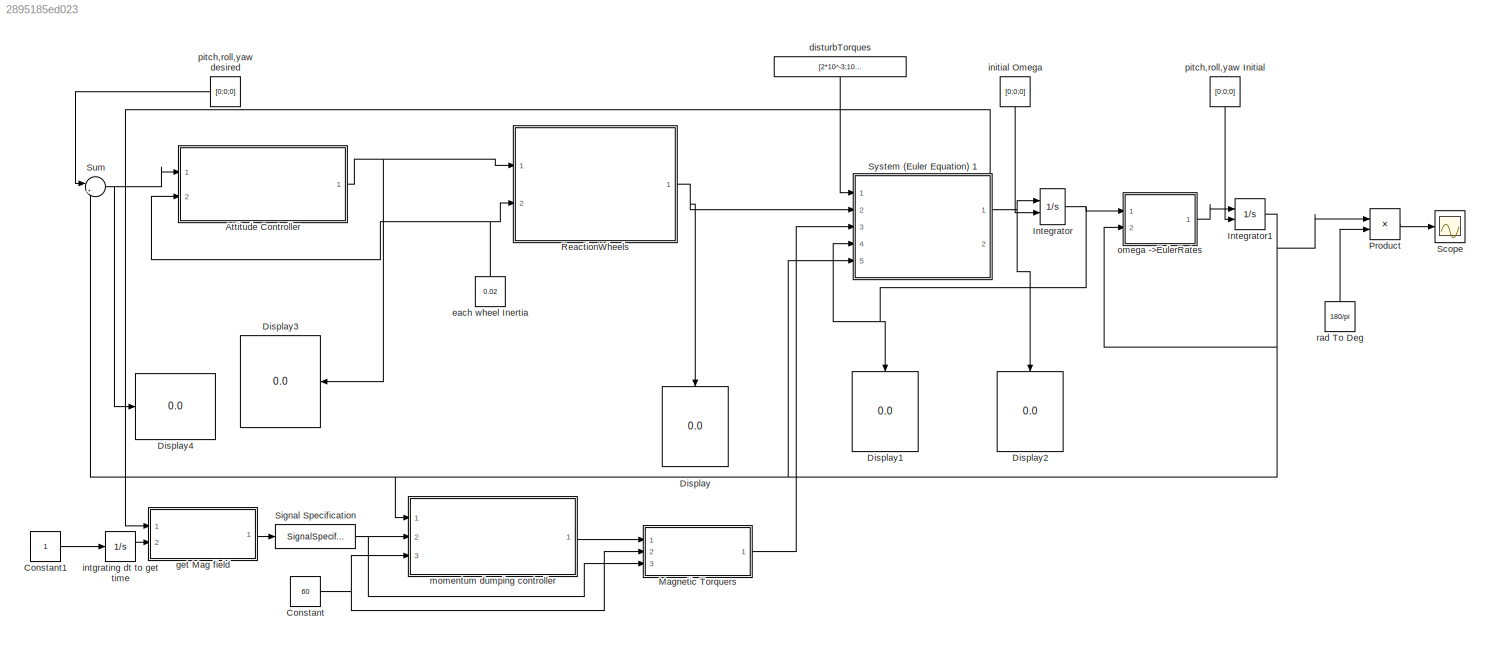
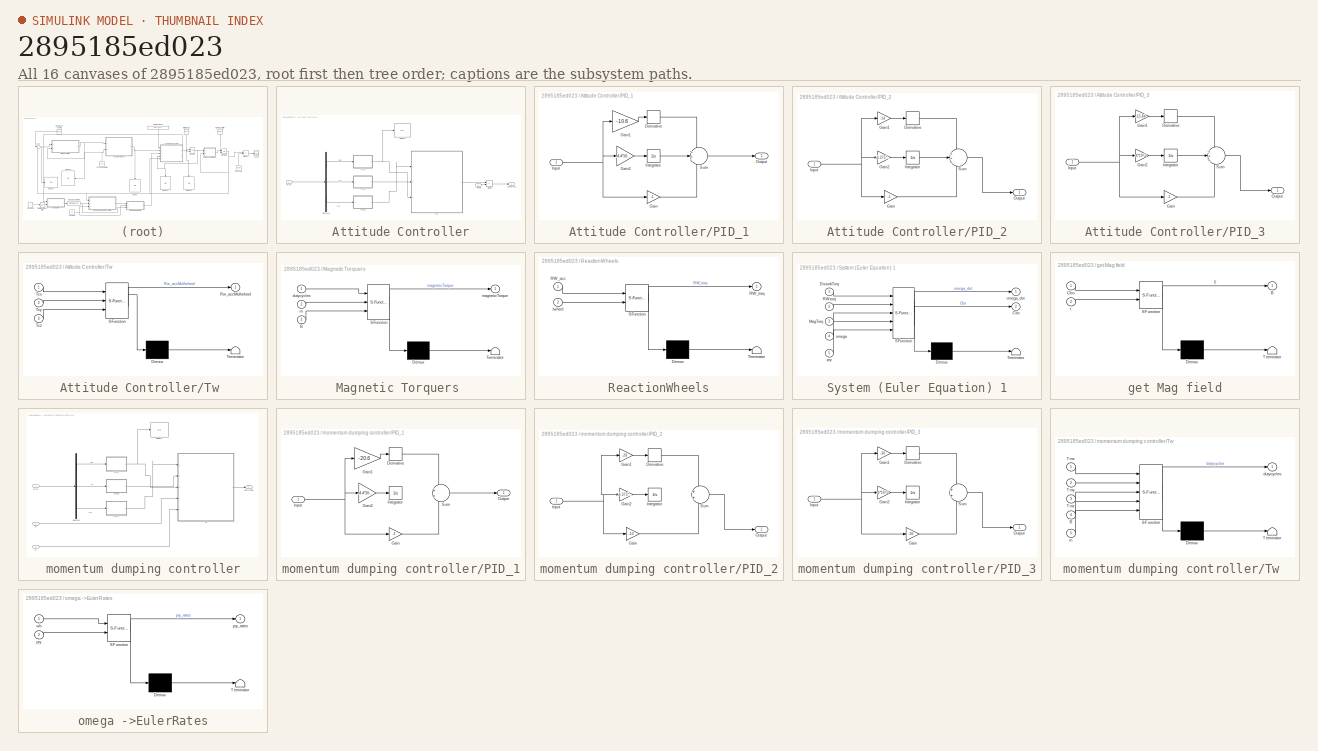
[diagram: thumbnail index - all 16 canvases of the model, root first then tree order]
MODEL slx_2895185ed023
KIND model
CONFIG AbsTol = auto
CONFIG EnableMultiTasking = off
CONFIG FixedStep = auto
CONFIG MaxStep = 0.01
CONFIG MinStep = auto
CONFIG RelTol = 1e-6
CONFIG SampleTimeConstraint = Unconstrained
CONFIG Solver = VariableStepAuto
CONFIG SolverName = VariableStepAuto
CONFIG StartTime = 0.0
CONFIG StopTime = 10000
BLOCK [SubSystem] Attitude Controller
  Ports = [2, 1]
  RequestExecContextInheritance = off
  Variant = off
BLOCK [Demux] Attitude Controller/Demux1
  DisplayOption = bar
  Outputs = 3
  Ports = [1, 3]
BLOCK [Display] Attitude Controller/Display4
  Decimation = 1
  Ports = [1]
BLOCK [Product] Attitude Controller/Divide
  InputSameDT = off
  Inputs = */
  OutDataTypeStr = Inherit: Inherit via internal rule
  Ports = [2, 1]
  RndMeth = Floor
  SaturateOnIntegerOverflow = off
BLOCK [Inport] Attitude Controller/I  wheel
  IconDisplay = Port number
  Port = 2
BLOCK [SubSystem] Attitude Controller/PID_1
  Ports = [1, 1]
  RequestExecContextInheritance = off
  Variant = off
BLOCK [Derivative] Attitude Controller/PID_1/Derivative
  CoefficientInTFapproximation = 0
BLOCK [Gain] Attitude Controller/PID_1/Gain
  Gain = -1
  OutDataTypeStr = Inherit: Inherit via internal rule
  ParamDataTypeStr = Inherit: Inherit via internal rule
  SaturateOnIntegerOverflow = off
BLOCK [Gain] Attitude Controller/PID_1/Gain1
  Gain = -10.6
  OutDataTypeStr = Inherit: Inherit via internal rule
  ParamDataTypeStr = Inherit: Inherit via internal rule
  SaturateOnIntegerOverflow = off
BLOCK [Gain] Attitude Controller/PID_1/Gain2
  Gain = -4.4*10^-3
  OutDataTypeStr = Inherit: Inherit via internal rule
  ParamDataTypeStr = Inherit: Inherit via internal rule
  SaturateOnIntegerOverflow = off
BLOCK [Inport] Attitude Controller/PID_1/Input
  IconDisplay = Port number
BLOCK [Integrator] Attitude Controller/PID_1/Integrator
  Ports = [1, 1]
BLOCK [Outport] Attitude Controller/PID_1/Output
  IconDisplay = Port number
BLOCK [Sum] Attitude Controller/PID_1/Sum
  IconShape = round
  InputSameDT = off
  Inputs = +++
  OutDataTypeStr = Inherit: Inherit via internal rule
  Ports = [3, 1]
  SaturateOnIntegerOverflow = off
BLOCK [SubSystem] Attitude Controller/PID_2
  Ports = [1, 1]
  RequestExecContextInheritance = off
  Variant = off
BLOCK [Derivative] Attitude Controller/PID_2/Derivative
  CoefficientInTFapproximation = 0
BLOCK [Gain] Attitude Controller/PID_2/Gain
  Gain = -1
  OutDataTypeStr = Inherit: Inherit via internal rule
  ParamDataTypeStr = Inherit: Inherit via internal rule
  SaturateOnIntegerOverflow = off
BLOCK [Gain] Attitude Controller/PID_2/Gain1
  Gain = -14
  OutDataTypeStr = Inherit: Inherit via internal rule
  ParamDataTypeStr = Inherit: Inherit via internal rule
  SaturateOnIntegerOverflow = off
BLOCK [Gain] Attitude Controller/PID_2/Gain2
  Gain = -4.375*10^-3
  OutDataTypeStr = Inherit: Inherit via internal rule
  ParamDataTypeStr = Inherit: Inherit via internal rule
  SaturateOnIntegerOverflow = off
BLOCK [Inport] Attitude Controller/PID_2/Input
  IconDisplay = Port number
BLOCK [Integrator] Attitude Controller/PID_2/Integrator
  Ports = [1, 1]
BLOCK [Outport] Attitude Controller/PID_2/Output
  IconDisplay = Port number
BLOCK [Sum] Attitude Controller/PID_2/Sum
  IconShape = round
  InputSameDT = off
  Inputs = +++
  OutDataTypeStr = Inherit: Inherit via internal rule
  Ports = [3, 1]
  SaturateOnIntegerOverflow = off
BLOCK [SubSystem] Attitude Controller/PID_3
  Ports = [1, 1]
  RequestExecContextInheritance = off
  Variant = off
BLOCK [Derivative] Attitude Controller/PID_3/Derivative
  CoefficientInTFapproximation = 0
BLOCK [Gain] Attitude Controller/PID_3/Gain
  Gain = -1
  OutDataTypeStr = Inherit: Inherit via internal rule
  ParamDataTypeStr = Inherit: Inherit via internal rule
  SaturateOnIntegerOverflow = off
BLOCK [Gain] Attitude Controller/PID_3/Gain1
  Gain = -15.84
  OutDataTypeStr = Inherit: Inherit via internal rule
  ParamDataTypeStr = Inherit: Inherit via internal rule
  SaturateOnIntegerOverflow = off
BLOCK [Gain] Attitude Controller/PID_3/Gain2
  Gain = -4*10^-3
  OutDataTypeStr = Inherit: Inherit via internal rule
  ParamDataTypeStr = Inherit: Inherit via internal rule
  SaturateOnIntegerOverflow = off
BLOCK [Inport] Attitude Controller/PID_3/Input
  IconDisplay = Port number
BLOCK [Integrator] Attitude Controller/PID_3/Integrator
  Ports = [1, 1]
BLOCK [Outport] Attitude Controller/PID_3/Output
  IconDisplay = Port number
BLOCK [Sum] Attitude Controller/PID_3/Sum
  IconShape = round
  InputSameDT = off
  Inputs = +++
  OutDataTypeStr = Inherit: Inherit via internal rule
  Ports = [3, 1]
  SaturateOnIntegerOverflow = off
BLOCK [SubSystem] Attitude Controller/Tw 
  ErrorFcn = Stateflow.Translate.translate
  PermitHierarchicalResolution = ExplicitOnly
  Ports = [3, 1]
  RequestExecContextInheritance = off
  SFBlockType = MATLAB Function
  TreatAsAtomicUnit = on
  Variant = off
BLOCK [Demux] Attitude Controller/Tw / Demux 
  Outputs = 1
  Ports = [1, 1]
BLOCK [S-Function] Attitude Controller/Tw / SFunction 
  EnableBusSupport = on
  FunctionName = sf_sfun
  PortCounts = [3 2]
  Ports = [3, 2]
  SFcnIsStateOwnerBlock = off
  SFunctionDeploymentMode = off
  Tag = Stateflow S-Function mainModel_matlab2013b_ 1
BLOCK [Terminator] Attitude Controller/Tw / Terminator 
BLOCK [Outport] Attitude Controller/Tw /Rw_accMulIwheel
  IconDisplay = Port number
BLOCK [Inport] Attitude Controller/Tw /Tcx
  IconDisplay = Port number
BLOCK [Inport] Attitude Controller/Tw /Tcy
  IconDisplay = Port number
  Port = 2
BLOCK [Inport] Attitude Controller/Tw /Tcz
  IconDisplay = Port number
  Port = 3
BLOCK [Outport] Attitude Controller/Wheel acc
  IconDisplay = Port number
BLOCK [Inport] Attitude Controller/error
  IconDisplay = Port number
BLOCK [Constant] Constant
  Value = 60
BLOCK [Constant] Constant1
BLOCK [Display] Display
  Decimation = 1
  Ports = [1]
BLOCK [Display] Display1
  Decimation = 1
  Ports = [1]
BLOCK [Display] Display2
  Decimation = 1
  Ports = [1]
BLOCK [Display] Display3
  Decimation = 1
  Ports = [1]
BLOCK [Display] Display4
  Decimation = 1
  Ports = [1]
BLOCK [Integrator] Integrator
  InitialConditionSource = external
  Ports = [2, 1]
BLOCK [Integrator] Integrator1
  InitialConditionSource = external
  Ports = [2, 1]
BLOCK [SubSystem] Magnetic Torquers 
  ErrorFcn = Stateflow.Translate.translate
  PermitHierarchicalResolution = ExplicitOnly
  Ports = [3, 1]
  RequestExecContextInheritance = off
  SFBlockType = MATLAB Function
  TreatAsAtomicUnit = on
  Variant = off
BLOCK [Demux] Magnetic Torquers / Demux 
  Outputs = 1
  Ports = [1, 1]
BLOCK [S-Function] Magnetic Torquers / SFunction 
  EnableBusSupport = on
  FunctionName = sf_sfun
  PortCounts = [3 2]
  Ports = [3, 2]
  SFcnIsStateOwnerBlock = off
  SFunctionDeploymentMode = off
  Tag = Stateflow S-Function mainModel_matlab2013b_ 6
BLOCK [Terminator] Magnetic Torquers / Terminator 
BLOCK [Inport] Magnetic Torquers /B
  IconDisplay = Port number
  Port = 3
BLOCK [Inport] Magnetic Torquers /dutycycles
  IconDisplay = Port number
BLOCK [Inport] Magnetic Torquers /m
  IconDisplay = Port number
  Port = 2
BLOCK [Outport] Magnetic Torquers /magneticTorque
  IconDisplay = Port number
BLOCK [Product] Product
  InputSameDT = off
  OutDataTypeStr = Inherit: Inherit via internal rule
  Ports = [2, 1]
  RndMeth = Floor
  SaturateOnIntegerOverflow = off
BLOCK [SubSystem] ReactionWheels
  ErrorFcn = Stateflow.Translate.translate
  PermitHierarchicalResolution = ExplicitOnly
  Ports = [2, 1]
  RequestExecContextInheritance = off
  SFBlockType = MATLAB Function
  TreatAsAtomicUnit = on
  Variant = off
BLOCK [Demux] ReactionWheels/ Demux 
  Outputs = 1
  Ports = [1, 1]
BLOCK [S-Function] ReactionWheels/ SFunction 
  EnableBusSupport = on
  FunctionName = sf_sfun
  PortCounts = [2 2]
  Ports = [2, 2]
  SFcnIsStateOwnerBlock = off
  SFunctionDeploymentMode = off
  Tag = Stateflow S-Function mainModel_matlab2013b_ 8
BLOCK [Terminator] ReactionWheels/ Terminator 
BLOCK [Inport] ReactionWheels/Iwheel
  IconDisplay = Port number
  Port = 2
BLOCK [Inport] ReactionWheels/RW_acc
  IconDisplay = Port number
BLOCK [Outport] ReactionWheels/RW_torq
  IconDisplay = Port number
BLOCK [Scope] Scope
  NumInputPorts = 1
  Ports = [1]
  ScopeSpecificationString = Simulink.scopes.TimeScopeBlockCfg('CurrentConfiguration', extmgr.ConfigurationSet(extmgr.Configuration('Core','General UI',true,'FigureColor',[0.156862745098039 0.156862745098039 0.156862745098039]),extmgr.Configuration('Core','Source UI',true),extmgr.Configuration('Sources','WiredSimulink',true,'DataLoggingSaveFormat','StructureWithTime','DataLoggingDecimation','1','DataLoggingDecimateData',true)...<+2762ch>
BLOCK [SignalSpecification] Signal Specification
  Dimensions = 3
  OutDataTypeStr = double
BLOCK [Sum] Sum
  IconShape = round
  InputSameDT = off
  Inputs = |+-
  OutDataTypeStr = Inherit: Inherit via internal rule
  Ports = [2, 1]
  SaturateOnIntegerOverflow = off
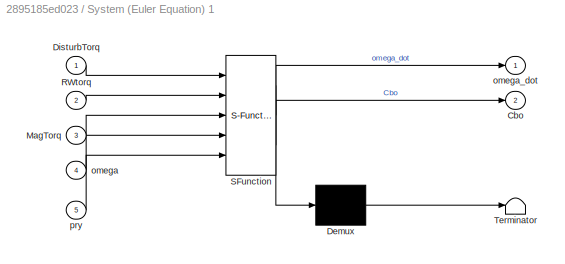
BLOCK [SubSystem] System (Euler Equation) 1
  ErrorFcn = Stateflow.Translate.translate
  PermitHierarchicalResolution = ExplicitOnly
  Ports = [5, 2]
  RequestExecContextInheritance = off
  SFBlockType = MATLAB Function
  TreatAsAtomicUnit = on
  Variant = off
BLOCK [Demux] System (Euler Equation) 1/ Demux 
  Outputs = 1
  Ports = [1, 1]
BLOCK [S-Function] System (Euler Equation) 1/ SFunction 
  EnableBusSupport = on
  FunctionName = sf_sfun
  PortCounts = [5 3]
  Ports = [5, 3]
  SFcnIsStateOwnerBlock = off
  SFunctionDeploymentMode = off
  Tag = Stateflow S-Function mainModel_matlab2013b_ 3
BLOCK [Terminator] System (Euler Equation) 1/ Terminator 
BLOCK [Outport] System (Euler Equation) 1/Cbo
  IconDisplay = Port number
  Port = 2
BLOCK [Inport] System (Euler Equation) 1/DisturbTorq
  IconDisplay = Port number
BLOCK [Inport] System (Euler Equation) 1/MagTorq
  IconDisplay = Port number
  Port = 3
BLOCK [Inport] System (Euler Equation) 1/RWtorq
  IconDisplay = Port number
  Port = 2
BLOCK [Inport] System (Euler Equation) 1/omega
  IconDisplay = Port number
  Port = 4
BLOCK [Outport] System (Euler Equation) 1/omega_dot
  IconDisplay = Port number
BLOCK [Inport] System (Euler Equation) 1/pry
  IconDisplay = Port number
  Port = 5
BLOCK [Constant] disturbTorques
  Value = [2*10^-3;10^-4;2*10^-3]
BLOCK [Constant] each wheel Inertia
  Value = 0.02
BLOCK [SubSystem] get Mag field
  ErrorFcn = Stateflow.Translate.translate
  PermitHierarchicalResolution = ExplicitOnly
  Ports = [2, 1]
  RequestExecContextInheritance = off
  SFBlockType = MATLAB Function
  TreatAsAtomicUnit = on
  Variant = off
BLOCK [Demux] get Mag field/ Demux 
  Outputs = 1
  Ports = [1, 1]
BLOCK [S-Function] get Mag field/ SFunction 
  EnableBusSupport = on
  FunctionName = sf_sfun
  PortCounts = [2 2]
  Ports = [2, 2]
  SFcnIsStateOwnerBlock = off
  SFunctionDeploymentMode = off
  Tag = Stateflow S-Function mainModel_matlab2013b_ 4
BLOCK [Terminator] get Mag field/ Terminator 
BLOCK [Outport] get Mag field/B
  IconDisplay = Port number
BLOCK [Inport] get Mag field/Cbo
  IconDisplay = Port number
BLOCK [Inport] get Mag field/t
  IconDisplay = Port number
  Port = 2
BLOCK [Constant] initial Omega
  Value = [0;0;0]
BLOCK [Integrator] intgrating dt to get time
  Ports = [1, 1]
BLOCK [SubSystem] momentum dumping controller
  Ports = [3, 1]
  RequestExecContextInheritance = off
  Variant = off
BLOCK [Inport] momentum dumping controller/B
  IconDisplay = Port number
  Port = 2
BLOCK [Demux] momentum dumping controller/Demux1
  DisplayOption = bar
  Outputs = 3
  Ports = [1, 3]
BLOCK [Display] momentum dumping controller/Display4
  Decimation = 1
  Ports = [1]
BLOCK [Outport] momentum dumping controller/DutyCycles
  IconDisplay = Port number
BLOCK [SubSystem] momentum dumping controller/PID_1
  Ports = [1, 1]
  RequestExecContextInheritance = off
  Variant = off
BLOCK [Derivative] momentum dumping controller/PID_1/Derivative
  CoefficientInTFapproximation = 0
BLOCK [Gain] momentum dumping controller/PID_1/Gain
  Gain = -2
  OutDataTypeStr = Inherit: Inherit via internal rule
  ParamDataTypeStr = Inherit: Inherit via internal rule
  SaturateOnIntegerOverflow = off
BLOCK [Gain] momentum dumping controller/PID_1/Gain1
  Gain = -20.6
  OutDataTypeStr = Inherit: Inherit via internal rule
  ParamDataTypeStr = Inherit: Inherit via internal rule
  SaturateOnIntegerOverflow = off
BLOCK [Gain] momentum dumping controller/PID_1/Gain2
  Commented = through
  Gain = -4.4*10^-3
  OutDataTypeStr = Inherit: Inherit via internal rule
  ParamDataTypeStr = Inherit: Inherit via internal rule
  SaturateOnIntegerOverflow = off
BLOCK [Inport] momentum dumping controller/PID_1/Input
  IconDisplay = Port number
BLOCK [Integrator] momentum dumping controller/PID_1/Integrator
  Commented = through
  Ports = [1, 1]
BLOCK [Outport] momentum dumping controller/PID_1/Output
  IconDisplay = Port number
BLOCK [Sum] momentum dumping controller/PID_1/Sum
  IconShape = round
  InputSameDT = off
  OutDataTypeStr = Inherit: Inherit via internal rule
  Ports = [2, 1]
  SaturateOnIntegerOverflow = off
BLOCK [SubSystem] momentum dumping controller/PID_2
  Ports = [1, 1]
  RequestExecContextInheritance = off
  Variant = off
BLOCK [Derivative] momentum dumping controller/PID_2/Derivative
  CoefficientInTFapproximation = 0
BLOCK [Gain] momentum dumping controller/PID_2/Gain
  Gain = -10
  OutDataTypeStr = Inherit: Inherit via internal rule
  ParamDataTypeStr = Inherit: Inherit via internal rule
  SaturateOnIntegerOverflow = off
BLOCK [Gain] momentum dumping controller/PID_2/Gain1
  Gain = -28
  OutDataTypeStr = Inherit: Inherit via internal rule
  ParamDataTypeStr = Inherit: Inherit via internal rule
  SaturateOnIntegerOverflow = off
BLOCK [Gain] momentum dumping controller/PID_2/Gain2
  Commented = on
  Gain = -4.375*10^-3
  OutDataTypeStr = Inherit: Inherit via internal rule
  ParamDataTypeStr = Inherit: Inherit via internal rule
  SaturateOnIntegerOverflow = off
BLOCK [Inport] momentum dumping controller/PID_2/Input
  IconDisplay = Port number
BLOCK [Integrator] momentum dumping controller/PID_2/Integrator
  Commented = on
  Ports = [1, 1]
BLOCK [Outport] momentum dumping controller/PID_2/Output
  IconDisplay = Port number
BLOCK [Sum] momentum dumping controller/PID_2/Sum
  IconShape = round
  InputSameDT = off
  OutDataTypeStr = Inherit: Inherit via internal rule
  Ports = [2, 1]
  SaturateOnIntegerOverflow = off
BLOCK [SubSystem] momentum dumping controller/PID_3
  Ports = [1, 1]
  RequestExecContextInheritance = off
  Variant = off
BLOCK [Derivative] momentum dumping controller/PID_3/Derivative
  CoefficientInTFapproximation = 0
BLOCK [Gain] momentum dumping controller/PID_3/Gain
  Gain = -30
  OutDataTypeStr = Inherit: Inherit via internal rule
  ParamDataTypeStr = Inherit: Inherit via internal rule
  SaturateOnIntegerOverflow = off
BLOCK [Gain] momentum dumping controller/PID_3/Gain1
  Gain = -30
  OutDataTypeStr = Inherit: Inherit via internal rule
  ParamDataTypeStr = Inherit: Inherit via internal rule
  SaturateOnIntegerOverflow = off
BLOCK [Gain] momentum dumping controller/PID_3/Gain2
  Commented = on
  Gain = -4*10^-3
  OutDataTypeStr = Inherit: Inherit via internal rule
  ParamDataTypeStr = Inherit: Inherit via internal rule
  SaturateOnIntegerOverflow = off
BLOCK [Inport] momentum dumping controller/PID_3/Input
  IconDisplay = Port number
BLOCK [Integrator] momentum dumping controller/PID_3/Integrator
  Commented = on
  Ports = [1, 1]
BLOCK [Outport] momentum dumping controller/PID_3/Output
  IconDisplay = Port number
BLOCK [Sum] momentum dumping controller/PID_3/Sum
  IconShape = round
  InputSameDT = off
  OutDataTypeStr = Inherit: Inherit via internal rule
  Ports = [2, 1]
  SaturateOnIntegerOverflow = off
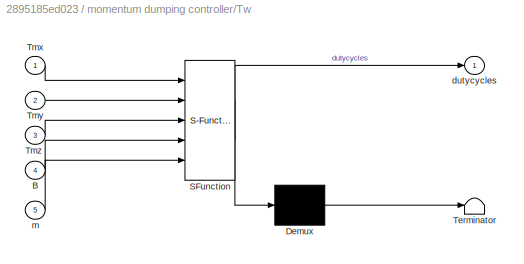
BLOCK [SubSystem] momentum dumping controller/Tw 
  ErrorFcn = Stateflow.Translate.translate
  PermitHierarchicalResolution = ExplicitOnly
  Ports = [5, 1]
  RequestExecContextInheritance = off
  SFBlockType = MATLAB Function
  TreatAsAtomicUnit = on
  Variant = off
BLOCK [Demux] momentum dumping controller/Tw / Demux 
  Outputs = 1
  Ports = [1, 1]
BLOCK [S-Function] momentum dumping controller/Tw / SFunction 
  EnableBusSupport = on
  FunctionName = sf_sfun
  PortCounts = [5 2]
  Ports = [5, 2]
  SFcnIsStateOwnerBlock = off
  SFunctionDeploymentMode = off
  Tag = Stateflow S-Function mainModel_matlab2013b_ 2
BLOCK [Terminator] momentum dumping controller/Tw / Terminator 
BLOCK [Inport] momentum dumping controller/Tw /B
  IconDisplay = Port number
  Port = 4
BLOCK [Inport] momentum dumping controller/Tw /Tmx
  IconDisplay = Port number
BLOCK [Inport] momentum dumping controller/Tw /Tmy
  IconDisplay = Port number
  Port = 2
BLOCK [Inport] momentum dumping controller/Tw /Tmz
  IconDisplay = Port number
  Port = 3
BLOCK [Outport] momentum dumping controller/Tw /dutycycles
  IconDisplay = Port number
BLOCK [Inport] momentum dumping controller/Tw /m
  IconDisplay = Port number
  Port = 5
BLOCK [Inport] momentum dumping controller/error
  IconDisplay = Port number
BLOCK [Inport] momentum dumping controller/m
  IconDisplay = Port number
  Port = 3
BLOCK [SubSystem] omega ->EulerRates
  ErrorFcn = Stateflow.Translate.translate
  PermitHierarchicalResolution = ExplicitOnly
  Ports = [2, 1]
  RequestExecContextInheritance = off
  SFBlockType = MATLAB Function
  TreatAsAtomicUnit = on
  Variant = off
BLOCK [Demux] omega ->EulerRates/ Demux 
  Outputs = 1
  Ports = [1, 1]
BLOCK [S-Function] omega ->EulerRates/ SFunction 
  EnableBusSupport = on
  FunctionName = sf_sfun
  PortCounts = [2 2]
  Ports = [2, 2]
  SFcnIsStateOwnerBlock = off
  SFunctionDeploymentMode = off
  Tag = Stateflow S-Function mainModel_matlab2013b_ 7
BLOCK [Terminator] omega ->EulerRates/ Terminator 
BLOCK [Inport] omega ->EulerRates/pry
  IconDisplay = Port number
  Port = 2
BLOCK [Outport] omega ->EulerRates/pry_rates
  IconDisplay = Port number
BLOCK [Inport] omega ->EulerRates/wb
  IconDisplay = Port number
BLOCK [Constant] pitch,roll,yaw Initial
  Value = [0;0;0]
BLOCK [Constant] pitch,roll,yaw desired
  Value = [0;0;0]
BLOCK [Constant] rad To Deg
  Value = 180/pi
ANNOTATION Attitude Controller: yaw
ANNOTATION momentum dumping controller: yaw
LINE Attitude Controller/Demux1:1 -> Attitude Controller/PID_1:1
LINE Attitude Controller/Demux1:2 -> Attitude Controller/PID_2:1
LINE Attitude Controller/Demux1:3 -> Attitude Controller/PID_3:1
LINE Attitude Controller/Divide:1 -> Attitude Controller/Wheel acc:1
LINE Attitude Controller/I  wheel:1 -> Attitude Controller/Divide:2
LINE Attitude Controller/PID_1/Derivative:1 -> Attitude Controller/PID_1/Sum:1
LINE Attitude Controller/PID_1/Gain1:1 -> Attitude Controller/PID_1/Derivative:1
LINE Attitude Controller/PID_1/Gain2:1 -> Attitude Controller/PID_1/Integrator:1
LINE Attitude Controller/PID_1/Gain:1 -> Attitude Controller/PID_1/Sum:3
NET Attitude Controller/PID_1/Input:1 -> Attitude Controller/PID_1/Gain1:1, Attitude Controller/PID_1/Gain2:1, Attitude Controller/PID_1/Gain:1
LINE Attitude Controller/PID_1/Integrator:1 -> Attitude Controller/PID_1/Sum:2
LINE Attitude Controller/PID_1/Sum:1 -> Attitude Controller/PID_1/Output:1
NET Attitude Controller/PID_1:1 -> Attitude Controller/Display4:1, Attitude Controller/Tw :3
LINE Attitude Controller/PID_2/Derivative:1 -> Attitude Controller/PID_2/Sum:1
LINE Attitude Controller/PID_2/Gain1:1 -> Attitude Controller/PID_2/Derivative:1
LINE Attitude Controller/PID_2/Gain2:1 -> Attitude Controller/PID_2/Integrator:1
LINE Attitude Controller/PID_2/Gain:1 -> Attitude Controller/PID_2/Sum:3
NET Attitude Controller/PID_2/Input:1 -> Attitude Controller/PID_2/Gain1:1, Attitude Controller/PID_2/Gain2:1, Attitude Controller/PID_2/Gain:1
LINE Attitude Controller/PID_2/Integrator:1 -> Attitude Controller/PID_2/Sum:2
LINE Attitude Controller/PID_2/Sum:1 -> Attitude Controller/PID_2/Output:1
LINE Attitude Controller/PID_2:1 -> Attitude Controller/Tw :2
LINE Attitude Controller/PID_3/Derivative:1 -> Attitude Controller/PID_3/Sum:1
LINE Attitude Controller/PID_3/Gain1:1 -> Attitude Controller/PID_3/Derivative:1
LINE Attitude Controller/PID_3/Gain2:1 -> Attitude Controller/PID_3/Integrator:1
LINE Attitude Controller/PID_3/Gain:1 -> Attitude Controller/PID_3/Sum:3
NET Attitude Controller/PID_3/Input:1 -> Attitude Controller/PID_3/Gain1:1, Attitude Controller/PID_3/Gain2:1, Attitude Controller/PID_3/Gain:1
LINE Attitude Controller/PID_3/Integrator:1 -> Attitude Controller/PID_3/Sum:2
LINE Attitude Controller/PID_3/Sum:1 -> Attitude Controller/PID_3/Output:1
LINE Attitude Controller/PID_3:1 -> Attitude Controller/Tw :1
LINE Attitude Controller/Tw :1 -> Attitude Controller/Divide:1
LINE Attitude Controller/error:1 -> Attitude Controller/Demux1:1
NET Attitude Controller:1 -> Display3:1, ReactionWheels:1
LINE Constant1:1 -> intgrating dt to get time:1
NET Constant:1 -> Magnetic Torquers :2, momentum dumping controller:3
NET Integrator1:1 -> Product:1, Sum:2, System (Euler Equation) 1:5, momentum dumping controller:1, omega ->EulerRates:2
NET Integrator:1 -> Display1:1, System (Euler Equation) 1:4, omega ->EulerRates:1
LINE Magnetic Torquers :1 -> System (Euler Equation) 1:3
LINE Product:1 -> Scope:1
NET ReactionWheels:1 -> Display:1, System (Euler Equation) 1:2
NET Signal Specification:1 -> Magnetic Torquers :3, momentum dumping controller:2
NET Sum:1 -> Attitude Controller:1, Display4:1
NET System (Euler Equation) 1:1 -> Display2:1, Integrator:1
LINE System (Euler Equation) 1:2 -> get Mag field:1
LINE disturbTorques:1 -> System (Euler Equation) 1:1
NET each wheel Inertia:1 -> Attitude Controller:2, ReactionWheels:2
LINE get Mag field:1 -> Signal Specification:1
LINE initial Omega:1 -> Integrator:2
LINE intgrating dt to get time:1 -> get Mag field:2
LINE momentum dumping controller/B:1 -> momentum dumping controller/Tw :4
LINE momentum dumping controller/Demux1:1 -> momentum dumping controller/PID_1:1
LINE momentum dumping controller/Demux1:2 -> momentum dumping controller/PID_2:1
LINE momentum dumping controller/Demux1:3 -> momentum dumping controller/PID_3:1
LINE momentum dumping controller/PID_1/Derivative:1 -> momentum dumping controller/PID_1/Sum:1
LINE momentum dumping controller/PID_1/Gain1:1 -> momentum dumping controller/PID_1/Derivative:1
LINE momentum dumping controller/PID_1/Gain2:1 -> momentum dumping controller/PID_1/Integrator:1
LINE momentum dumping controller/PID_1/Gain:1 -> momentum dumping controller/PID_1/Sum:2
NET momentum dumping controller/PID_1/Input:1 -> momentum dumping controller/PID_1/Gain1:1, momentum dumping controller/PID_1/Gain2:1, momentum dumping controller/PID_1/Gain:1
LINE momentum dumping controller/PID_1/Sum:1 -> momentum dumping controller/PID_1/Output:1
NET momentum dumping controller/PID_1:1 -> momentum dumping controller/Display4:1, momentum dumping controller/Tw :3
LINE momentum dumping controller/PID_2/Derivative:1 -> momentum dumping controller/PID_2/Sum:1
LINE momentum dumping controller/PID_2/Gain1:1 -> momentum dumping controller/PID_2/Derivative:1
LINE momentum dumping controller/PID_2/Gain2:1 -> momentum dumping controller/PID_2/Integrator:1
LINE momentum dumping controller/PID_2/Gain:1 -> momentum dumping controller/PID_2/Sum:2
NET momentum dumping controller/PID_2/Input:1 -> momentum dumping controller/PID_2/Gain1:1, momentum dumping controller/PID_2/Gain2:1, momentum dumping controller/PID_2/Gain:1
LINE momentum dumping controller/PID_2/Sum:1 -> momentum dumping controller/PID_2/Output:1
LINE momentum dumping controller/PID_2:1 -> momentum dumping controller/Tw :2
LINE momentum dumping controller/PID_3/Derivative:1 -> momentum dumping controller/PID_3/Sum:1
LINE momentum dumping controller/PID_3/Gain1:1 -> momentum dumping controller/PID_3/Derivative:1
LINE momentum dumping controller/PID_3/Gain2:1 -> momentum dumping controller/PID_3/Integrator:1
LINE momentum dumping controller/PID_3/Gain:1 -> momentum dumping controller/PID_3/Sum:2
NET momentum dumping controller/PID_3/Input:1 -> momentum dumping controller/PID_3/Gain1:1, momentum dumping controller/PID_3/Gain2:1, momentum dumping controller/PID_3/Gain:1
LINE momentum dumping controller/PID_3/Sum:1 -> momentum dumping controller/PID_3/Output:1
LINE momentum dumping controller/PID_3:1 -> momentum dumping controller/Tw :1
LINE momentum dumping controller/Tw :1 -> momentum dumping controller/DutyCycles:1
LINE momentum dumping controller/error:1 -> momentum dumping controller/Demux1:1
LINE momentum dumping controller/m:1 -> momentum dumping controller/Tw :5
LINE momentum dumping controller:1 -> Magnetic Torquers :1
LINE omega ->EulerRates:1 -> Integrator1:1
LINE pitch,roll,yaw Initial:1 -> Integrator1:2
LINE pitch,roll,yaw desired:1 -> Sum:1
LINE rad To Deg:1 -> Product:2
note: NET lines group one-source signal fan-out (src -> all destinations, sorted); 1:1 wires keep LINE
CHART Attitude Controller/Tw
 states=1 transitions=1
  STATE_LABEL 'eML_blk_kernel()'
  STATE_LABEL 'SCRIPT:\nfunction Rw_accMulIwheel = fcn(Tcx,Tcy,Tcz)\n%Rw_acc=[0;0;0;0]; %no controller for now. This acceleration correspond\n% to the rate of change in speed of each wheel. wheel speeds are always\n% positive buy convention\nTc = [Tcx;Tcy;Tcz];\n\na = -1/sqrt(3);\nb = -1/sqrt(3);\ng = -1/sqrt(3);\n\nConv = [1+b^2+g^2, -a*b,      -a*g;\n          -a*b,    1+a^2+g^2,  -b*g;\n          -a*g,      -b*g,    1+a^2...<+93ch>'
CHART momentum dumping controller/Tw
 states=1 transitions=1
  STATE_LABEL 'eML_blk_kernel()'
  STATE_LABEL 'SCRIPT:\nfunction dutycycles = fcn(Tmx,Tmy,Tmz,B,m)\n%B should be in body frame!!\n\nTm = [Tmx;Tmy;Tmz];\nBcrossMatrix=[0,-B(3),B(2);B(3),0,-B(1);-B(2),B(1),0];\ndutycycles=pinv(BcrossMatrix)*(-Tm)/m;\n%should be restricted to 0-1\ndutycycles(dutycycles>1.0) = 1.0; %pwm duty cycle should be 100%;\ndutycycles(dutycycles<0.0) = 0.0;\nend\n'
CHART System (Euler Equation)
1 states=1 transitions=1
  STATE_LABEL 'eML_blk_kernel()'
  STATE_LABEL 'SCRIPT:\nfunction [omega_dot,Cbo] = fcn( DisturbTorq,RWtorq,MagTorq,omega,pry)\n%[x,y,z] corresponds to yaw roll and pitch axis!!!\n%omega written here is wrt orbit and written in body frame\nMOI=[1800 -50 -15;-50 1600 25;-15 25 1200];%momentOfInertia of Satellite(with everything)\n%Mass=1600;%kg\np=pry(1);\nr=pry(2);\ny=pry(3);\nCx=[    1, 0, 0\n        0, cos(y), sin(y)\n        0, -sin(y), cos(y)];\n\nCy=[ ...<+384ch>'
CHART get Mag field states=1 transitions=1
  STATE_LABEL 'eML_blk_kernel()'
  STATE_LABEL 'SCRIPT:\nfunction B = fieldDB(Cbo, t)\nw = 1.0741*10^(-3);\nT = 2*pi/w; \ntt = mod(t,T);\ntheta = tt / T;\ntheta = theta * 180/pi;\n\ndb = 10^-9*[NaN\tNaN\tNaN;\n-7820.66\t1635\t41250.5;\n-8699.04\t2355.57\t41081.6;\n-9581.72\t3070.08\t40886.4;\n-10469.4\t3777.47\t40664.2;\n-11362.6\t4476.6\t40413.8;\n-12261.8\t5166.22\t40134.2;\n-13167.1\t5844.98\t39824;\n-14078.6\t6511.4\t39482;\n-14996.1\t7163.91\t39107.1;\n-15919.2\t7800.81\t38698;\n...<+3608ch>'
CHART Magnetic Torquers
 states=1 transitions=1
  STATE_LABEL 'eML_blk_kernel()'
  STATE_LABEL 'SCRIPT:\nfunction magneticTorque = fcn(dutycycles,m,B)\nmagneticTorque = cross((m*dutycycles),B);\n\n'
CHART omega ->EulerRates states=1 transitions=1
  STATE_LABEL 'eML_blk_kernel()'
  STATE_LABEL 'SCRIPT:\nfunction pry_rates  = fcn(wb,pry)\n%[x,y,z] 3-2-1 rotation, where x=yaw,y=roll,z=pitch axis\n% pry-pitch,yaw,roll angles\n\n% Cx=[    1, 0, 0\n%         0, cos(yaw), sin(yaw)\n%         0, -sin(yaw), cos(yaw)    ];\n% \n% Cy=[    cos(roll), 0, -sin(roll);\n%         0, 1, 0;\n%         sin(roll), 0, cos(roll) ];\n% \n% Cz=[    cos(pitch), sin(pitch), 0;\n%         -sin(pitch), cos(pitch), 0;\n%         ...<+267ch>'
CHART ReactionWheels states=1 transitions=1
  STATE_LABEL 'eML_blk_kernel()'
  STATE_LABEL 'SCRIPT:\nfunction RW_torq = fcn(RW_acc,Iwheel)\n%For Normal arrangement(not the tetrahedron one)\n%RW_acc means acceleration of 4 individual wheel speeds\n\nTorq_acceleration_part=Iwheel*[  RW_acc(1)-1/sqrt(3)*RW_acc(4);\n                            RW_acc(2)-1/sqrt(3)*RW_acc(4);\n                            RW_acc(3)-1/sqrt(3)*RW_acc(4)  ];\nRW_torq=Torq_acceleration_part;      \n% if speedLimitSituation~...<+128ch>'
